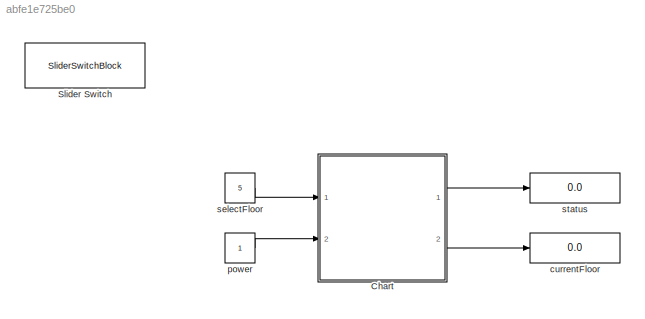
MODEL slx_abfe1e725be0
KIND model
CONFIG AbsTol = auto
CONFIG EnableMultiTasking = off
CONFIG FixedStep = auto
CONFIG MaxStep = auto
CONFIG MinStep = auto
CONFIG RelTol = 1e-3
CONFIG SampleTimeConstraint = Unconstrained
CONFIG SolverName = VariableStepAuto
CONFIG StartTime = 0.0
CONFIG StopTime = 10.0
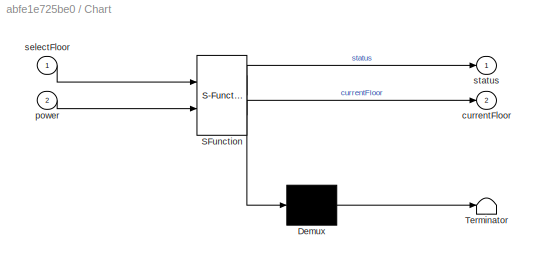
BLOCK [SubSystem] Chart
  ErrorFcn = Stateflow.Translate.translate
  PermitHierarchicalResolution = ExplicitOnly
  Ports = [2, 2]
  RequestExecContextInheritance = off
  SFBlockType = Chart
  TreatAsAtomicUnit = on
BLOCK [Demux] Chart/ Demux 
  Outputs = 1
  Ports = [1, 1]
BLOCK [S-Function] Chart/ SFunction 
  EnableBusSupport = on
  FunctionName = sf_sfun
  PortCounts = [2 3]
  Ports = [2, 3]
  SFcnIsStateOwnerBlock = off
  SFunctionDeploymentMode = off
  Tag = Stateflow S-Function 3
BLOCK [Terminator] Chart/ Terminator 
BLOCK [Outport] Chart/currentFloor
  Port = 2
BLOCK [Inport] Chart/power
  Port = 2
BLOCK [Inport] Chart/selectFloor
BLOCK [Outport] Chart/status
BLOCK [SliderSwitchBlock] Slider Switch
BLOCK [Display] currentFloor
  Decimation = 1
  Ports = [1]
BLOCK [Constant] power
BLOCK [Constant] selectFloor
  Value = 5
BLOCK [Display] status
  Decimation = 1
  Ports = [1]
LINE Chart:1 -> status:1
LINE Chart:2 -> currentFloor:1
LINE power:1 -> Chart:2
LINE selectFloor:1 -> Chart:1
CHART Chart states=10 transitions=23
  STATE_LABEL 'LiftFunction'
  STATE_LABEL 'LiftOn'
  STATE_LABEL 'Floor5\nentry:\nstatus=1;\nduring:\ncurrentFloor=5;\ncheckFloor(currentFloor);\nexit:\nstatus=0;'
  STATE_LABEL 'Floor4\nentry:\nstatus=1;\nduring:\ncurrentFloor=4;\ncheckFloor(currentFloor);\nexit:\nstatus=0;'
  STATE_LABEL 'Floor3\nentry:\nstatus=1;\nduring:\ncurrentFloor=3;\ncheckFloor(currentFloor);\nexit:\nstatus=0;'
  STATE_LABEL 'Floor2\nentry:\nstatus=1;\nduring:\ncurrentFloor=2;\ncheckFloor(currentFloor);\nexit:\nstatus=0;'
  STATE_LABEL 'Floor1\nentry:\nstatus=1;\nduring:\ncurrentFloor=1;\ncheckFloor(currentFloor);\nexit:\nstatus=0;'
  STATE_LABEL 'GroundFloor\nentry:\nstatus=1;\nduring:\ncurrentFloor=0;\ncheckFloor(currentFloor);\nexit:\nstatus=0;'
  STATE_LABEL 'moveDown'
  STATE_LABEL 'moveUp'
  STATE_LABEL 'moveDown'
  STATE_LABEL 'moveUp'
  STATE_LABEL 'moveDown'
  STATE_LABEL 'moveUp'
  STATE_LABEL 'moveDown'
  STATE_LABEL 'moveUp'
  STATE_LABEL 'moveDown'
  STATE_LABEL 'moveUp'
  STATE_LABEL 'H'
  STATE_LABEL 'LiftOff\nentry:\nstatus=0;'
  STATE_LABEL '[power==0]'
  STATE_LABEL '[power==1]'
  STATE_LABEL 'LiftOn'
  STATE_LABEL 'Floor5\nentry:\nstatus=1;\nduring:\ncurrentFloor=5;\ncheckFloor(currentFloor);\nexit:\nstatus=0;'
  STATE_LABEL 'Floor4\nentry:\nstatus=1;\nduring:\ncurrentFloor=4;\ncheckFloor(currentFloor);\nexit:\nstatus=0;'
  STATE_LABEL 'Floor3\nentry:\nstatus=1;\nduring:\ncurrentFloor=3;\ncheckFloor(currentFloor);\nexit:\nstatus=0;'
  STATE_LABEL 'Floor2\nentry:\nstatus=1;\nduring:\ncurrentFloor=2;\ncheckFloor(currentFloor);\nexit:\nstatus=0;'
  STATE_LABEL 'Floor1\nentry:\nstatus=1;\nduring:\ncurrentFloor=1;\ncheckFloor(currentFloor);\nexit:\nstatus=0;'
  STATE_LABEL 'GroundFloor\nentry:\nstatus=1;\nduring:\ncurrentFloor=0;\ncheckFloor(currentFloor);\nexit:\nstatus=0;'
  STATE_LABEL 'moveDown'
  STATE_LABEL 'moveUp'
  STATE_LABEL 'moveDown'
  STATE_LABEL 'moveUp'
  STATE_LABEL 'moveDown'
  STATE_LABEL 'moveUp'
  STATE_LABEL 'moveDown'
  STATE_LABEL 'moveUp'
  STATE_LABEL 'moveDown'
  STATE_LABEL 'moveUp'
  STATE_LABEL 'H'
CHART  states=0 transitions=0
